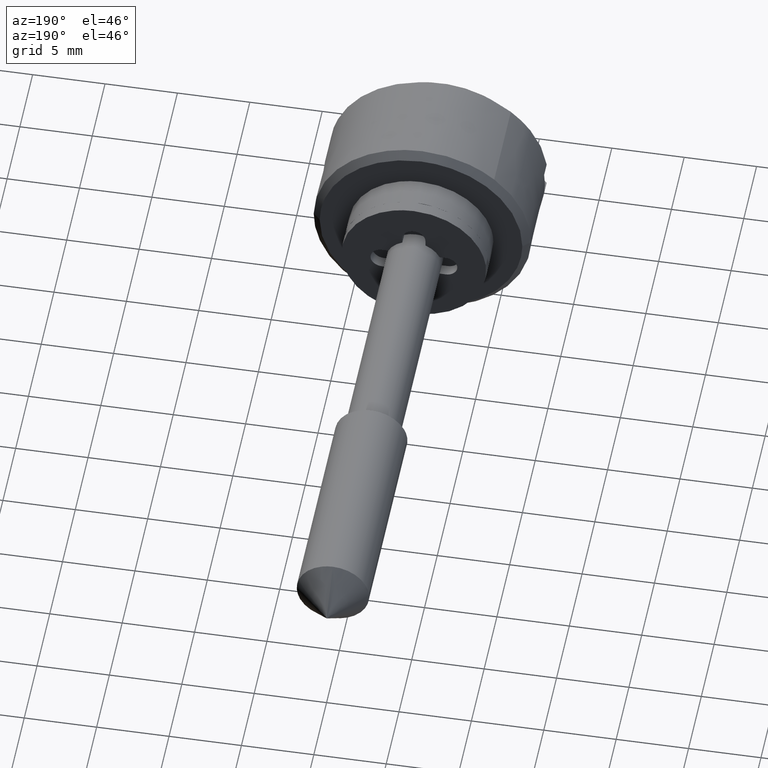
[diagram: clean part render]
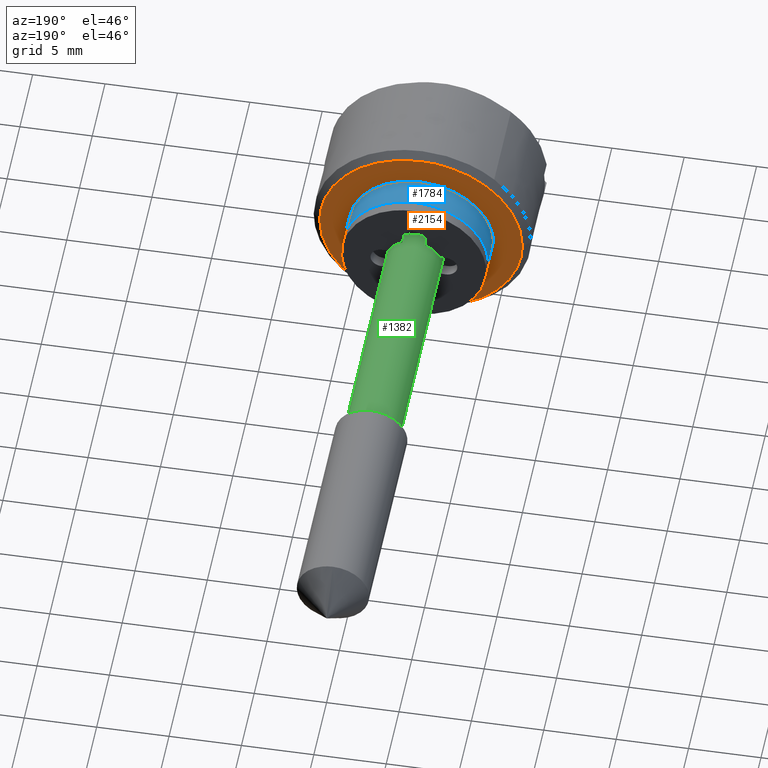
[diagram: same view with three faces highlighted in distinct colors, each labeled with its STEP entity id]
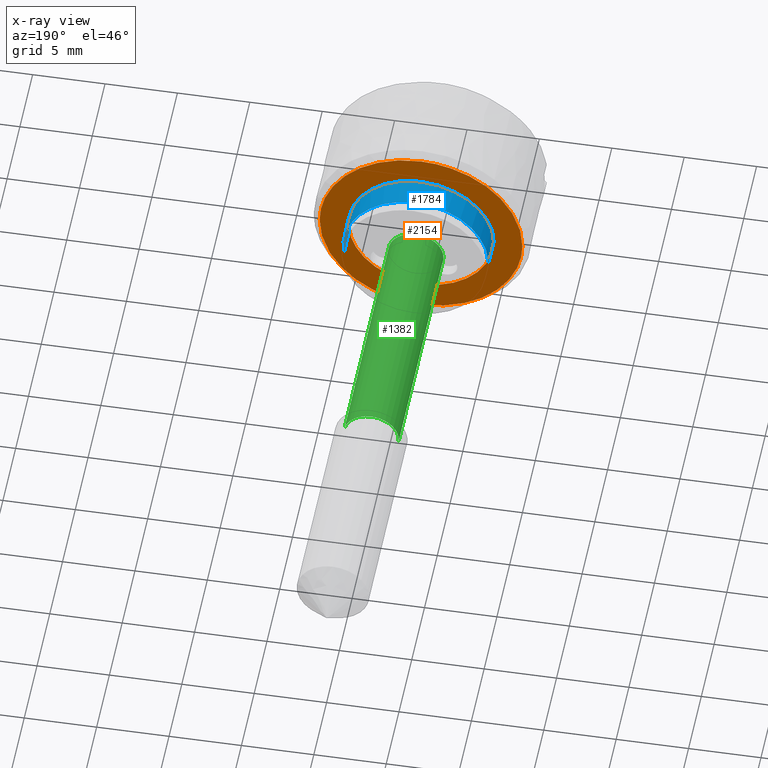
[diagram: x-ray of the same camera — body ghosted, the three highlighted faces saturated]
A machine part, auxiliary view with three faces highlighted in distinct colors.
The next image is the same camera in x-ray (body ghosted, the three faces saturated) — at least one of them is partly hidden behind the body in this view.
Their STEP definitions:

[orange] entity #2154 — the highlighted face is a freeform B-spline surface patch.
#1418=CARTESIAN_POINT('',(-2.000000000000103,-6.999733461449296,0.061085748489371));
#1419=VERTEX_POINT('',#1418);
#1425=CARTESIAN_POINT('',(-2.0,0.0,7.0));
#1426=VERTEX_POINT('',#1425);
#1427=CARTESIAN_POINT('',(-2.0,0.0,7.0));
#1428=CARTESIAN_POINT('',(-2.000000000000000,-6.939178474163394,7.0));
#1429=CARTESIAN_POINT('',(-2.000000000000103,-6.999733461449296,0.061085748489371));
#1437=(BOUNDED_CURVE()B_SPLINE_CURVE(2,(#1427,#1428,#1429),.UNSPECIFIED.,.F.,.U.)B_SPLINE_CURVE_WITH_KNOTS((3,3),(0.500000000000000,0.748460105664976),.UNSPECIFIED.)CURVE()GEOMETRIC_REPRESENTATION_ITEM()RATIONAL_B_SPLINE_CURVE((1.0,0.708910879620219,0.996414028100320))REPRESENTATION_ITEM(''));
#1438=EDGE_CURVE('',#1426,#1419,#1437,.T.);
#1440=CARTESIAN_POINT('',(-2.000000000000103,6.999733461449296,-0.061085748489370));
#1441=VERTEX_POINT('',#1440);
#1442=CARTESIAN_POINT('',(-2.000000000000103,6.999733461449296,-0.061085748489370));
#1443=CARTESIAN_POINT('',(-2.000000000000000,6.999999999999999,-0.030543455745663));
#1444=CARTESIAN_POINT('',(-2.0,7.0,0.0));
#1445=CARTESIAN_POINT('',(-2.0,6.999999999999999,6.999999999999999));
#1446=CARTESIAN_POINT('',(-2.0,0.0,7.0));
#1454=(BOUNDED_CURVE()B_SPLINE_CURVE(2,(#1442,#1443,#1444,#1445,#1446),.UNSPECIFIED.,.F.,.U.)B_SPLINE_CURVE_WITH_KNOTS((3,2,3),(0.248460105664975,0.250000000000000,0.500000000000000),.UNSPECIFIED.)CURVE()GEOMETRIC_REPRESENTATION_ITEM()RATIONAL_B_SPLINE_CURVE((0.996414028100318,0.998195901566328,1.0,0.707106781186547,1.0))REPRESENTATION_ITEM(''));
#1455=EDGE_CURVE('',#1441,#1426,#1454,.T.);
#1561=CARTESIAN_POINT('',(-2.0,0.0,-7.0));
#1562=VERTEX_POINT('',#1561);
#1563=CARTESIAN_POINT('',(-2.0,0.0,-7.0));
#1564=CARTESIAN_POINT('',(-2.000000000000000,6.939178474163352,-6.999999999999999));
#1565=CARTESIAN_POINT('',(-2.000000000000104,6.999733461449296,-0.061085748489370));
#1573=(BOUNDED_CURVE()B_SPLINE_CURVE(2,(#1563,#1564,#1565),.UNSPECIFIED.,.F.,.U.)B_SPLINE_CURVE_WITH_KNOTS((3,3),(0.0,0.248460105664975),.UNSPECIFIED.)CURVE()GEOMETRIC_REPRESENTATION_ITEM()RATIONAL_B_SPLINE_CURVE((1.0,0.708910879620220,0.996414028100318))REPRESENTATION_ITEM(''));
#1574=EDGE_CURVE('',#1562,#1441,#1573,.T.);
#1576=CARTESIAN_POINT('',(-2.000000000000103,-6.999733461449296,0.061085748489371));
#1577=CARTESIAN_POINT('',(-2.000000000000000,-6.999999999999999,0.030543455745664));
#1578=CARTESIAN_POINT('',(-2.0,-7.0,0.0));
#1579=CARTESIAN_POINT('',(-2.0,-6.999999999999999,-6.999999999999999));
#1580=CARTESIAN_POINT('',(-2.0,0.0,-7.0));
#1588=(BOUNDED_CURVE()B_SPLINE_CURVE(2,(#1576,#1577,#1578,#1579,#1580),.UNSPECIFIED.,.F.,.U.)B_SPLINE_CURVE_WITH_KNOTS((3,2,3),(0.748460105664975,0.750000000000000,1.0),.UNSPECIFIED.)CURVE()GEOMETRIC_REPRESENTATION_ITEM()RATIONAL_B_SPLINE_CURVE((0.996414028100318,0.998195901566328,1.0,0.707106781186547,1.0))REPRESENTATION_ITEM(''));
#1589=EDGE_CURVE('',#1419,#1562,#1588,.T.);
#1613=CARTESIAN_POINT('',(-2.0,0.0,-5.0));
#1614=VERTEX_POINT('',#1613);
#1615=CARTESIAN_POINT('',(-2.0,-4.961331069123448,-0.620640010433078));
#1616=VERTEX_POINT('',#1615);
#1617=CARTESIAN_POINT('',(-2.0,0.0,-5.0));
#1618=CARTESIAN_POINT('',(-2.000000000000000,-4.413493000690306,-5.0));
#1619=CARTESIAN_POINT('',(-2.000000000000000,-4.961331069123448,-0.620640010433078));
#1627=(BOUNDED_CURVE()B_SPLINE_CURVE(2,(#1617,#1618,#1619),.UNSPECIFIED.,.F.,.U.)B_SPLINE_CURVE_WITH_KNOTS((3,3),(0.0,0.228526071026992),.UNSPECIFIED.)CURVE()GEOMETRIC_REPRESENTATION_ITEM()RATIONAL_B_SPLINE_CURVE((1.0,0.732265053896451,0.954005430270242))REPRESENTATION_ITEM(''));
#1628=EDGE_CURVE('',#1614,#1616,#1627,.T.);
#1630=CARTESIAN_POINT('',(-2.000000000000299,4.999809686945014,0.043624468631829));
#1631=VERTEX_POINT('',#1630);
#1632=CARTESIAN_POINT('',(-2.000000000000299,4.999809686945014,0.043624468631829));
#1633=CARTESIAN_POINT('',(-2.000000000000000,5.0,0.021812649439124));
#1634=CARTESIAN_POINT('',(-2.0,5.0,0.0));
#1635=CARTESIAN_POINT('',(-2.000000000000000,5.000000000000001,-5.000000000000001));
#1636=CARTESIAN_POINT('',(-2.0,0.0,-5.0));
#1644=(BOUNDED_CURVE()B_SPLINE_CURVE(2,(#1632,#1633,#1634,#1635,#1636),.UNSPECIFIED.,.F.,.U.)B_SPLINE_CURVE_WITH_KNOTS((3,2,3),(0.748460394862402,0.750000000000000,1.0),.UNSPECIFIED.)CURVE()GEOMETRIC_REPRESENTATION_ITEM()RATIONAL_B_SPLINE_CURVE((0.996414697384973,0.998196240382188,1.0,0.707106781186548,1.0))REPRESENTATION_ITEM(''));
#1645=EDGE_CURVE('',#1631,#1614,#1644,.T.);
#1720=CARTESIAN_POINT('',(-2.0,0.0,5.0));
#1721=VERTEX_POINT('',#1720);
#1722=CARTESIAN_POINT('',(-2.0,-4.961331069123449,-0.620640010433078));
#1723=CARTESIAN_POINT('',(-2.000000000000000,-5.0,-0.311524637701800));
#1724=CARTESIAN_POINT('',(-2.0,-5.0,0.0));
#1725=CARTESIAN_POINT('',(-2.000000000000000,-5.000000000000001,5.000000000000001));
#1726=CARTESIAN_POINT('',(-2.0,0.0,5.0));
#1734=(BOUNDED_CURVE()B_SPLINE_CURVE(2,(#1722,#1723,#1724,#1725,#1726),.UNSPECIFIED.,.F.,.U.)B_SPLINE_CURVE_WITH_KNOTS((3,2,3),(0.228526071026992,0.250000000000000,0.500000000000000),.UNSPECIFIED.)CURVE()GEOMETRIC_REPRESENTATION_ITEM()RATIONAL_B_SPLINE_CURVE((0.954005430270242,0.974841727290097,1.0,0.707106781186548,1.0))REPRESENTATION_ITEM(''));
#1735=EDGE_CURVE('',#1616,#1721,#1734,.T.);
#1769=CARTESIAN_POINT('',(-2.0,0.0,5.0));
#1770=CARTESIAN_POINT('',(-1.999999999999999,4.956564191136122,5.0));
#1771=CARTESIAN_POINT('',(-2.000000000000299,4.999809686945014,0.043624468631829));
#1779=(BOUNDED_CURVE()B_SPLINE_CURVE(2,(#1769,#1770,#1771),.UNSPECIFIED.,.F.,.U.)B_SPLINE_CURVE_WITH_KNOTS((3,3),(0.500000000000000,0.748460394862402),.UNSPECIFIED.)CURVE()GEOMETRIC_REPRESENTATION_ITEM()RATIONAL_B_SPLINE_CURVE((1.0,0.708910540804359,0.996414697384973))REPRESENTATION_ITEM(''));
#1780=EDGE_CURVE('',#1721,#1631,#1779,.T.);
#2137=CARTESIAN_POINT('',(-2.0,-7.699006820701325,-7.699299972865284));
#2138=CARTESIAN_POINT('',(-2.0,7.699006320022311,-7.699299972865284));
#2139=CARTESIAN_POINT('',(-2.0,-7.699006820701325,7.699300348374545));
#2140=CARTESIAN_POINT('',(-2.0,7.699006320022311,7.699300348374545));
#2141=B_SPLINE_SURFACE_WITH_KNOTS('',1,1,((#2137,#2139),(#2138,#2140)),.UNSPECIFIED.,.F.,.F.,.U.,(2,2),(2,2),(0.0,15.398013140723640),(0.0,15.398600321239829),.UNSPECIFIED.);
#2142=ORIENTED_EDGE('',*,*,#1574,.T.);
#2143=ORIENTED_EDGE('',*,*,#1455,.T.);
#2144=ORIENTED_EDGE('',*,*,#1438,.T.);
#2145=ORIENTED_EDGE('',*,*,#1589,.T.);
#2146=EDGE_LOOP('',(#2142,#2143,#2144,#2145));
#2147=FACE_OUTER_BOUND('',#2146,.T.);
#2148=ORIENTED_EDGE('',*,*,#1780,.T.);
#2149=ORIENTED_EDGE('',*,*,#1645,.T.);
#2150=ORIENTED_EDGE('',*,*,#1628,.T.);
#2151=ORIENTED_EDGE('',*,*,#1735,.T.);
#2152=EDGE_LOOP('',(#2148,#2149,#2150,#2151));
#2153=FACE_BOUND('',#2152,.T.);
#2154=ADVANCED_FACE('',(#2147,#2153),#2141,.T.);

[blue] entity #1784 — the highlighted face is a freeform B-spline surface patch.
#1615=CARTESIAN_POINT('',(-2.0,-4.961331069123448,-0.620640010433078));
#1616=VERTEX_POINT('',#1615);
#1630=CARTESIAN_POINT('',(-2.000000000000299,4.999809686945014,0.043624468631829));
#1631=VERTEX_POINT('',#1630);
#1647=CARTESIAN_POINT('',(-1.040834E-017,4.999809693722076,0.043623691751207));
#1648=VERTEX_POINT('',#1647);
#1649=CARTESIAN_POINT('',(-2.000000000000299,4.999809686945014,0.043624468631829));
#1650=CARTESIAN_POINT('',(-1.040834E-017,4.999809693722076,0.043623691751207));
#1651=QUASI_UNIFORM_CURVE('',1,(#1649,#1650),.UNSPECIFIED.,.F.,.U.);
#1652=EDGE_CURVE('',#1631,#1648,#1651,.T.);
#1671=CARTESIAN_POINT('',(-1.450307E-017,-4.961331069123949,-0.620640010429077));
#1672=VERTEX_POINT('',#1671);
#1686=CARTESIAN_POINT('',(-2.0,-4.961331069123448,-0.620640010433078));
#1687=CARTESIAN_POINT('',(-1.450307E-017,-4.961331069123949,-0.620640010429077));
#1688=QUASI_UNIFORM_CURVE('',1,(#1686,#1687),.UNSPECIFIED.,.F.,.U.);
#1689=EDGE_CURVE('',#1616,#1672,#1688,.T.);
#1694=CARTESIAN_POINT('',(-2.050000000000000,5.000447548846013,-0.029467264028358));
#1695=CARTESIAN_POINT('',(-2.049999999999999,5.000129550852709,0.006971696768280));
#1696=CARTESIAN_POINT('',(-2.050000000000001,4.956176937828985,5.043442292812725));
#1697=CARTESIAN_POINT('',(-2.050000000000000,-0.043632677491869,4.999809615320855));
#1698=CARTESIAN_POINT('',(-2.050000000000001,-5.043442292812725,4.956176937828985));
#1699=CARTESIAN_POINT('',(-2.050000000000000,-4.999809615320855,-0.043632677491869));
#1700=CARTESIAN_POINT('',(-2.050000000000000,-4.997282156301378,-0.333250794790868));
#1701=CARTESIAN_POINT('',(-2.050000000000000,-4.956548503117746,-0.658871340860802));
#1702=CARTESIAN_POINT('',(-2.049999999999999,-4.951740222390446,-0.697308232072676));
#1703=CARTESIAN_POINT('',(0.051250000000000,5.000447548846013,-0.029467264028358));
#1704=CARTESIAN_POINT('',(0.051250000000000,5.000129550852709,0.006971696768280));
#1705=CARTESIAN_POINT('',(0.051250000000000,4.956176937828985,5.043442292812725));
#1706=CARTESIAN_POINT('',(0.051250000000000,-0.043632677491869,4.999809615320855));
#1707=CARTESIAN_POINT('',(0.051250000000000,-5.043442292812725,4.956176937828985));
#1708=CARTESIAN_POINT('',(0.051250000000000,-4.999809615320855,-0.043632677491869));
#1709=CARTESIAN_POINT('',(0.051250000000000,-4.997282156301378,-0.333250794790868));
#1710=CARTESIAN_POINT('',(0.051250000000000,-4.956548503117746,-0.658871340860802));
#1711=CARTESIAN_POINT('',(0.051250000000000,-4.951740222390446,-0.697308232072676));
#1719=(BOUNDED_SURFACE()B_SPLINE_SURFACE(2,1,((#1694,#1703),(#1695,#1704),(#1696,#1705),(#1697,#1706),(#1698,#1707),(#1699,#1708),(#1700,#1709),(#1701,#1710),(#1702,#1711)),.UNSPECIFIED.,.F.,.F.,.U.)B_SPLINE_SURFACE_WITH_KNOTS((3,1,2,2,1,3),(2,2),(0.0,0.086166999538030,8.370438246999930,16.654709494461830,17.317451194258780,17.403607665984431),(0.0,2.101250000000001),.UNSPECIFIED.)GEOMETRIC_REPRESENTATION_ITEM()RATIONAL_B_SPLINE_SURFACE(((1.006092926968784,1.006092926968784),(1.003046463484392,1.003046463484392),(0.707106781186548,0.707106781186548),(1.0,1.0),(0.707106781186548,0.707106781186548),(1.0,1.0),(0.976568542494924,0.976568542494924),(0.954327401523847,0.954327401523847),(0.951768684857033,0.951768684857033)))REPRESENTATION_ITEM('')SURFACE());
#1720=CARTESIAN_POINT('',(-2.0,0.0,5.0));
#1721=VERTEX_POINT('',#1720);
#1722=CARTESIAN_POINT('',(-2.0,-4.961331069123449,-0.620640010433078));
#1723=CARTESIAN_POINT('',(-2.000000000000000,-5.0,-0.311524637701800));
#1724=CARTESIAN_POINT('',(-2.0,-5.0,0.0));
#1725=CARTESIAN_POINT('',(-2.000000000000000,-5.000000000000001,5.000000000000001));
#1726=CARTESIAN_POINT('',(-2.0,0.0,5.0));
#1734=(BOUNDED_CURVE()B_SPLINE_CURVE(2,(#1722,#1723,#1724,#1725,#1726),.UNSPECIFIED.,.F.,.U.)B_SPLINE_CURVE_WITH_KNOTS((3,2,3),(0.228526071026992,0.250000000000000,0.500000000000000),.UNSPECIFIED.)CURVE()GEOMETRIC_REPRESENTATION_ITEM()RATIONAL_B_SPLINE_CURVE((0.954005430270242,0.974841727290097,1.0,0.707106781186548,1.0))REPRESENTATION_ITEM(''));
#1735=EDGE_CURVE('',#1616,#1721,#1734,.T.);
#1736=ORIENTED_EDGE('',*,*,#1735,.F.);
#1737=ORIENTED_EDGE('',*,*,#1689,.T.);
#1738=CARTESIAN_POINT('',(0.0,0.0,5.0));
#1739=VERTEX_POINT('',#1738);
#1740=CARTESIAN_POINT('',(0.0,0.0,5.0));
#1741=CARTESIAN_POINT('',(0.0,-5.000000000000001,5.000000000000001));
#1742=CARTESIAN_POINT('',(0.0,-5.0,0.0));
#1743=CARTESIAN_POINT('',(0.0,-5.0,-0.311524637697752));
#1744=CARTESIAN_POINT('',(-1.450307E-017,-4.961331069123950,-0.620640010429077));
#1752=(BOUNDED_CURVE()B_SPLINE_CURVE(2,(#1740,#1741,#1742,#1743,#1744),.UNSPECIFIED.,.F.,.U.)B_SPLINE_CURVE_WITH_KNOTS((3,2,3),(0.0,0.250000000000000,0.271473928972736),.UNSPECIFIED.)CURVE()GEOMETRIC_REPRESENTATION_ITEM()RATIONAL_B_SPLINE_CURVE((1.0,0.707106781186548,1.0,0.974841727290416,0.954005430270770))REPRESENTATION_ITEM(''));
#1753=EDGE_CURVE('',#1739,#1672,#1752,.T.);
#1754=ORIENTED_EDGE('',*,*,#1753,.F.);
#1755=CARTESIAN_POINT('',(-1.040834E-017,4.999809693722076,0.043623691751207));
#1756=CARTESIAN_POINT('',(0.0,4.956564961326533,4.999999999999999));
#1757=CARTESIAN_POINT('',(0.0,0.0,5.0));
#1765=(BOUNDED_CURVE()B_SPLINE_CURVE(2,(#1755,#1756,#1757),.UNSPECIFIED.,.F.,.U.)B_SPLINE_CURVE_WITH_KNOTS((3,3),(0.751539577768155,1.0),.UNSPECIFIED.)CURVE()GEOMETRIC_REPRESENTATION_ITEM()RATIONAL_B_SPLINE_CURVE((0.996414760725688,0.708910508739062,1.0))REPRESENTATION_ITEM(''));
#1766=EDGE_CURVE('',#1648,#1739,#1765,.T.);
#1767=ORIENTED_EDGE('',*,*,#1766,.F.);
#1768=ORIENTED_EDGE('',*,*,#1652,.F.);
#1769=CARTESIAN_POINT('',(-2.0,0.0,5.0));
#1770=CARTESIAN_POINT('',(-1.999999999999999,4.956564191136122,5.0));
#1771=CARTESIAN_POINT('',(-2.000000000000299,4.999809686945014,0.043624468631829));
#1779=(BOUNDED_CURVE()B_SPLINE_CURVE(2,(#1769,#1770,#1771),.UNSPECIFIED.,.F.,.U.)B_SPLINE_CURVE_WITH_KNOTS((3,3),(0.500000000000000,0.748460394862402),.UNSPECIFIED.)CURVE()GEOMETRIC_REPRESENTATION_ITEM()RATIONAL_B_SPLINE_CURVE((1.0,0.708910540804359,0.996414697384973))REPRESENTATION_ITEM(''));
#1780=EDGE_CURVE('',#1721,#1631,#1779,.T.);
#1781=ORIENTED_EDGE('',*,*,#1780,.F.);
#1782=EDGE_LOOP('',(#1736,#1737,#1754,#1767,#1768,#1781));
#1783=FACE_OUTER_BOUND('',#1782,.T.);
#1784=ADVANCED_FACE('',(#1783),#1719,.T.);

[green] entity #1382 — the highlighted face is a freeform B-spline surface patch.
#1221=CARTESIAN_POINT('',(17.500000000000000,1.894142934085305,-0.149072281979956));
#1222=VERTEX_POINT('',#1221);
#1236=CARTESIAN_POINT('',(17.500000000000000,-1.894142934085305,0.149072281979955));
#1237=VERTEX_POINT('',#1236);
#1253=CARTESIAN_POINT('',(-8.326673E-017,-1.894142934085305,0.149072281979956));
#1254=VERTEX_POINT('',#1253);
#1255=CARTESIAN_POINT('',(17.500000000000000,-1.894142934085305,0.149072281979955));
#1256=CARTESIAN_POINT('',(-8.326673E-017,-1.894142934085305,0.149072281979956));
#1257=QUASI_UNIFORM_CURVE('',1,(#1255,#1256),.UNSPECIFIED.,.F.,.U.);
#1258=EDGE_CURVE('',#1237,#1254,#1257,.T.);
#1277=CARTESIAN_POINT('',(-8.326673E-017,1.894142934085305,-0.149072281979956));
#1278=VERTEX_POINT('',#1277);
#1292=CARTESIAN_POINT('',(17.500000000000000,1.894142934085305,-0.149072281979956));
#1293=CARTESIAN_POINT('',(-8.326673E-017,1.894142934085305,-0.149072281979956));
#1294=QUASI_UNIFORM_CURVE('',1,(#1292,#1293),.UNSPECIFIED.,.F.,.U.);
#1295=EDGE_CURVE('',#1222,#1278,#1294,.T.);
#1300=CARTESIAN_POINT('',(17.937500000000000,-1.894142934092942,0.149072281882907));
#1301=CARTESIAN_POINT('',(17.937500000000004,-1.745070652210036,2.043215215975849));
#1302=CARTESIAN_POINT('',(17.937500000000000,0.149072281882907,1.894142934092942));
#1303=CARTESIAN_POINT('',(17.937500000000004,2.043215215975849,1.745070652210036));
#1304=CARTESIAN_POINT('',(17.937500000000000,1.894142934092942,-0.149072281882907));
#1305=CARTESIAN_POINT('',(-0.448437500000001,-1.894142934092942,0.149072281882907));
#1306=CARTESIAN_POINT('',(-0.448437500000001,-1.745070652210036,2.043215215975849));
#1307=CARTESIAN_POINT('',(-0.448437500000001,0.149072281882907,1.894142934092942));
#1308=CARTESIAN_POINT('',(-0.448437500000001,2.043215215975849,1.745070652210036));
#1309=CARTESIAN_POINT('',(-0.448437500000001,1.894142934092942,-0.149072281882907));
#1317=(BOUNDED_SURFACE()B_SPLINE_SURFACE(2,1,((#1300,#1305),(#1301,#1306),(#1302,#1307),(#1303,#1308),(#1304,#1309)),.UNSPECIFIED.,.F.,.F.,.U.)B_SPLINE_SURFACE_WITH_KNOTS((3,2,3),(2,2),(0.0,3.148023074035521,6.296046148071042),(0.0,18.385937500000001),.UNSPECIFIED.)GEOMETRIC_REPRESENTATION_ITEM()RATIONAL_B_SPLINE_SURFACE(((1.0,1.0),(0.707106781186548,0.707106781186548),(1.0,1.0),(0.707106781186548,0.707106781186548),(1.0,1.0)))REPRESENTATION_ITEM('')SURFACE());
#1318=CARTESIAN_POINT('',(17.500000000000000,0.0,1.900000000000000));
#1319=VERTEX_POINT('',#1318);
#1320=CARTESIAN_POINT('',(17.500000000000000,1.894142934085304,-0.149072281979956));
#1321=CARTESIAN_POINT('',(17.500000000000000,1.900000000000000,-0.074651203412073));
#1322=CARTESIAN_POINT('',(17.500000000000000,1.900000000000000,0.0));
#1323=CARTESIAN_POINT('',(17.500000000000000,1.900000000000000,1.900000000000000));
#1324=CARTESIAN_POINT('',(17.500000000000000,0.0,1.900000000000000));
#1332=(BOUNDED_CURVE()B_SPLINE_CURVE(2,(#1320,#1321,#1322,#1323,#1324),.UNSPECIFIED.,.F.,.U.)B_SPLINE_CURVE_WITH_KNOTS((3,2,3),(0.236331300615200,0.250000000000000,0.500000000000000),.UNSPECIFIED.)CURVE()GEOMETRIC_REPRESENTATION_ITEM()RATIONAL_B_SPLINE_CURVE((0.969723356135155,0.983986122560770,1.0,0.707106781186547,1.0))REPRESENTATION_ITEM(''));
#1333=EDGE_CURVE('',#1222,#1319,#1332,.T.);
#1334=ORIENTED_EDGE('',*,*,#1333,.F.);
#1335=ORIENTED_EDGE('',*,*,#1295,.T.);
#1336=CARTESIAN_POINT('',(0.0,0.0,1.900000000000000));
#1337=VERTEX_POINT('',#1336);
#1338=CARTESIAN_POINT('',(-8.326673E-017,1.894142934085304,-0.149072281979956));
#1339=CARTESIAN_POINT('',(0.0,1.900000000000000,-0.074651203412072));
#1340=CARTESIAN_POINT('',(0.0,1.900000000000000,0.0));
#1341=CARTESIAN_POINT('',(0.0,1.900000000000000,1.900000000000000));
#1342=CARTESIAN_POINT('',(0.0,0.0,1.900000000000000));
#1350=(BOUNDED_CURVE()B_SPLINE_CURVE(2,(#1338,#1339,#1340,#1341,#1342),.UNSPECIFIED.,.F.,.U.)B_SPLINE_CURVE_WITH_KNOTS((3,2,3),(0.236331300615200,0.250000000000000,0.500000000000000),.UNSPECIFIED.)CURVE()GEOMETRIC_REPRESENTATION_ITEM()RATIONAL_B_SPLINE_CURVE((0.969723356135155,0.983986122560770,1.0,0.707106781186547,1.0))REPRESENTATION_ITEM(''));
#1351=EDGE_CURVE('',#1278,#1337,#1350,.T.);
#1352=ORIENTED_EDGE('',*,*,#1351,.T.);
#1353=CARTESIAN_POINT('',(0.0,0.0,1.900000000000000));
#1354=CARTESIAN_POINT('',(0.0,-1.756341933970055,1.900000000000000));
#1355=CARTESIAN_POINT('',(-8.326673E-017,-1.894142934085304,0.149072281979956));
#1363=(BOUNDED_CURVE()B_SPLINE_CURVE(2,(#1353,#1354,#1355),.UNSPECIFIED.,.F.,.U.)B_SPLINE_CURVE_WITH_KNOTS((3,3),(0.500000000000000,0.736331300615200),.UNSPECIFIED.)CURVE()GEOMETRIC_REPRESENTATION_ITEM()RATIONAL_B_SPLINE_CURVE((1.0,0.723120658625777,0.969723356135155))REPRESENTATION_ITEM(''));
#1364=EDGE_CURVE('',#1337,#1254,#1363,.T.);
#1365=ORIENTED_EDGE('',*,*,#1364,.T.);
#1366=ORIENTED_EDGE('',*,*,#1258,.F.);
#1367=CARTESIAN_POINT('',(17.500000000000000,0.0,1.900000000000000));
#1368=CARTESIAN_POINT('',(17.499999999999993,-1.756341933970055,1.900000000000000));
#1369=CARTESIAN_POINT('',(17.500000000000000,-1.894142934085304,0.149072281979955));
#1377=(BOUNDED_CURVE()B_SPLINE_CURVE(2,(#1367,#1368,#1369),.UNSPECIFIED.,.F.,.U.)B_SPLINE_CURVE_WITH_KNOTS((3,3),(0.500000000000000,0.736331300615200),.UNSPECIFIED.)CURVE()GEOMETRIC_REPRESENTATION_ITEM()RATIONAL_B_SPLINE_CURVE((1.0,0.723120658625777,0.969723356135155))REPRESENTATION_ITEM(''));
#1378=EDGE_CURVE('',#1319,#1237,#1377,.T.);
#1379=ORIENTED_EDGE('',*,*,#1378,.F.);
#1380=EDGE_LOOP('',(#1334,#1335,#1352,#1365,#1366,#1379));
#1381=FACE_OUTER_BOUND('',#1380,.T.);
#1382=ADVANCED_FACE('',(#1381),#1317,.T.);